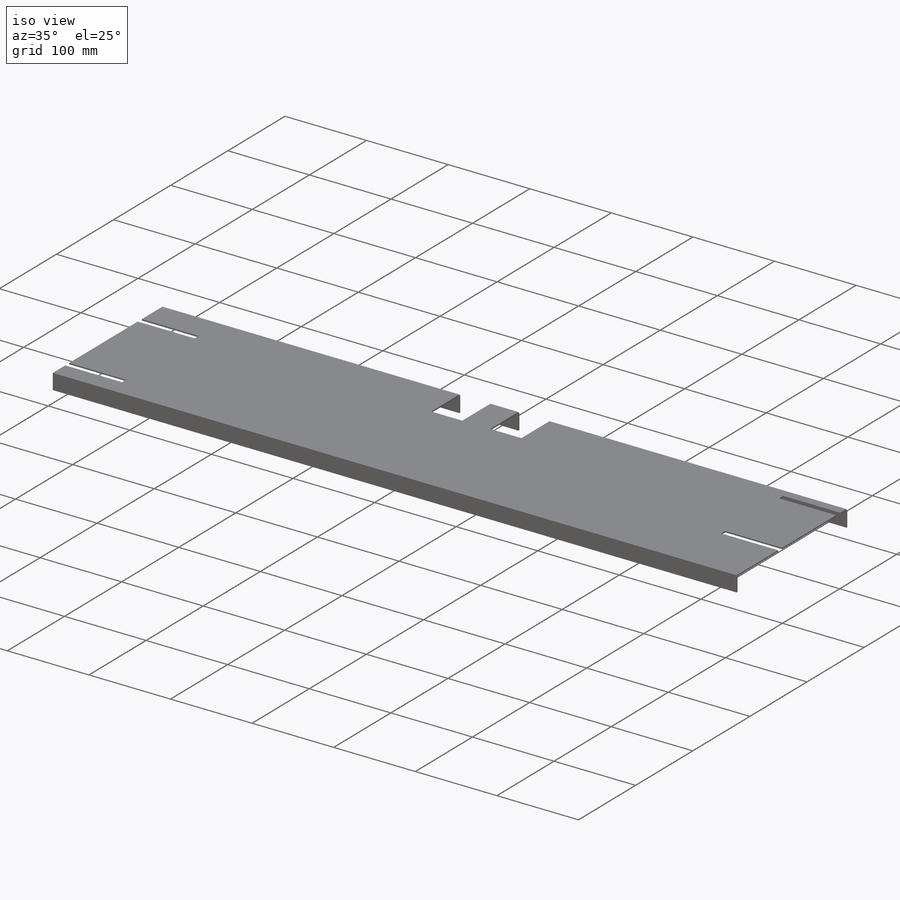
[diagram: iso view]
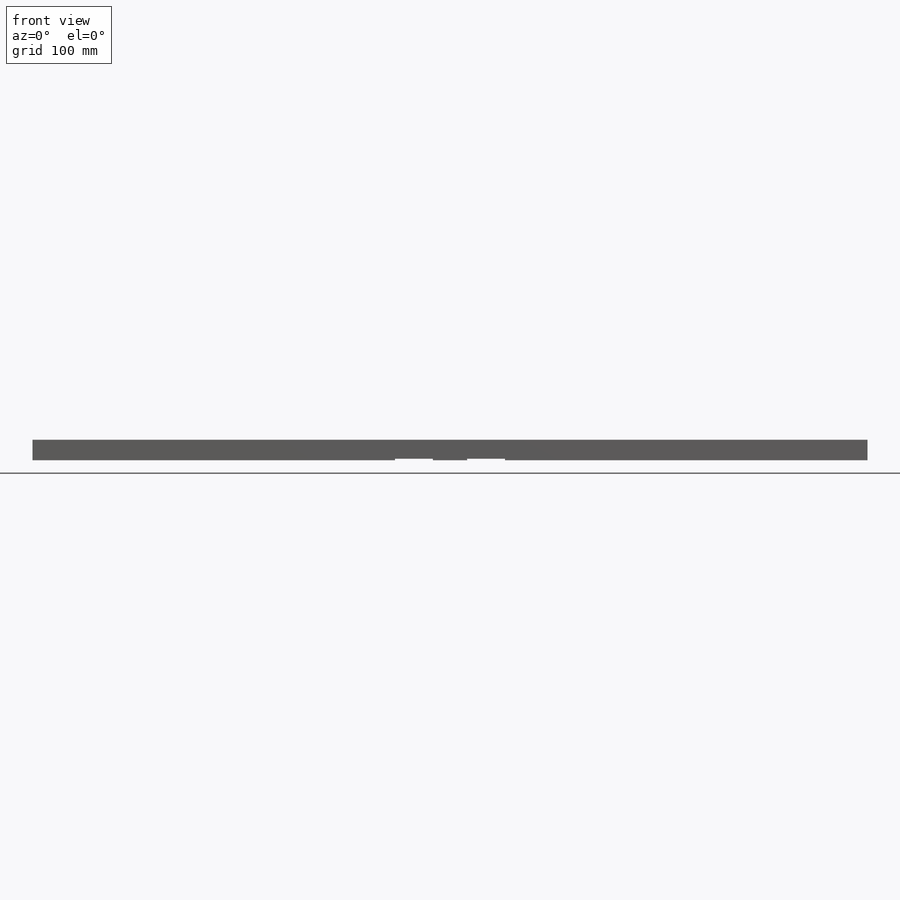
[diagram: front view]
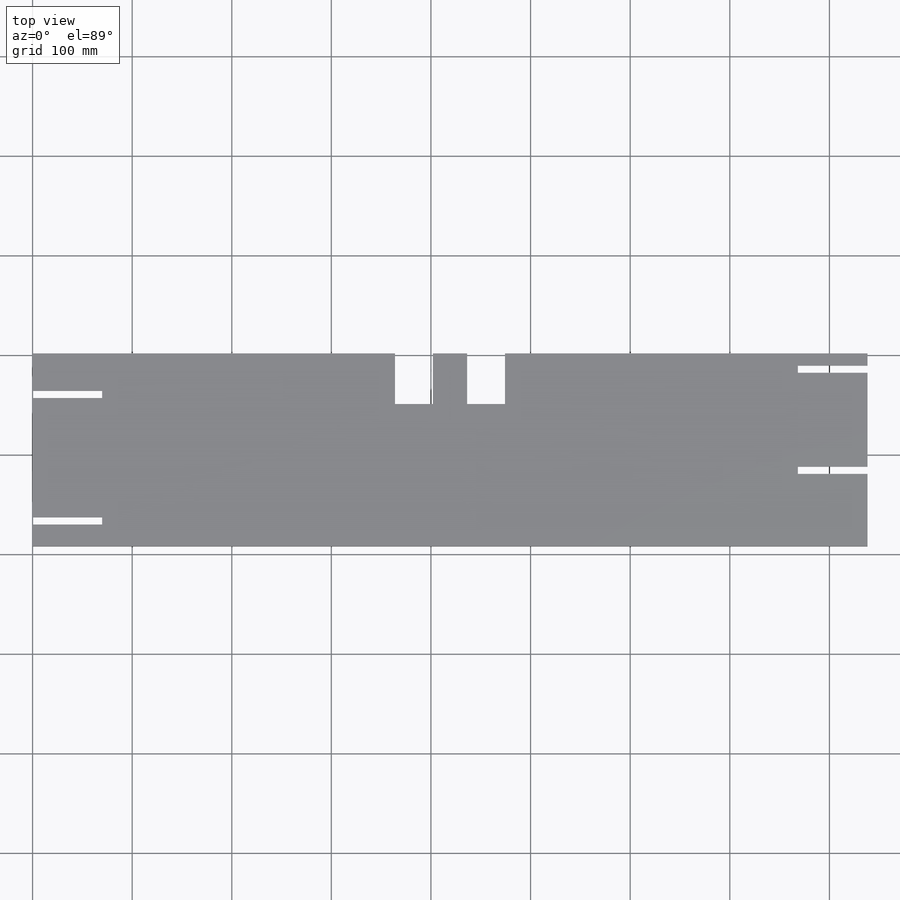
[diagram: top view]
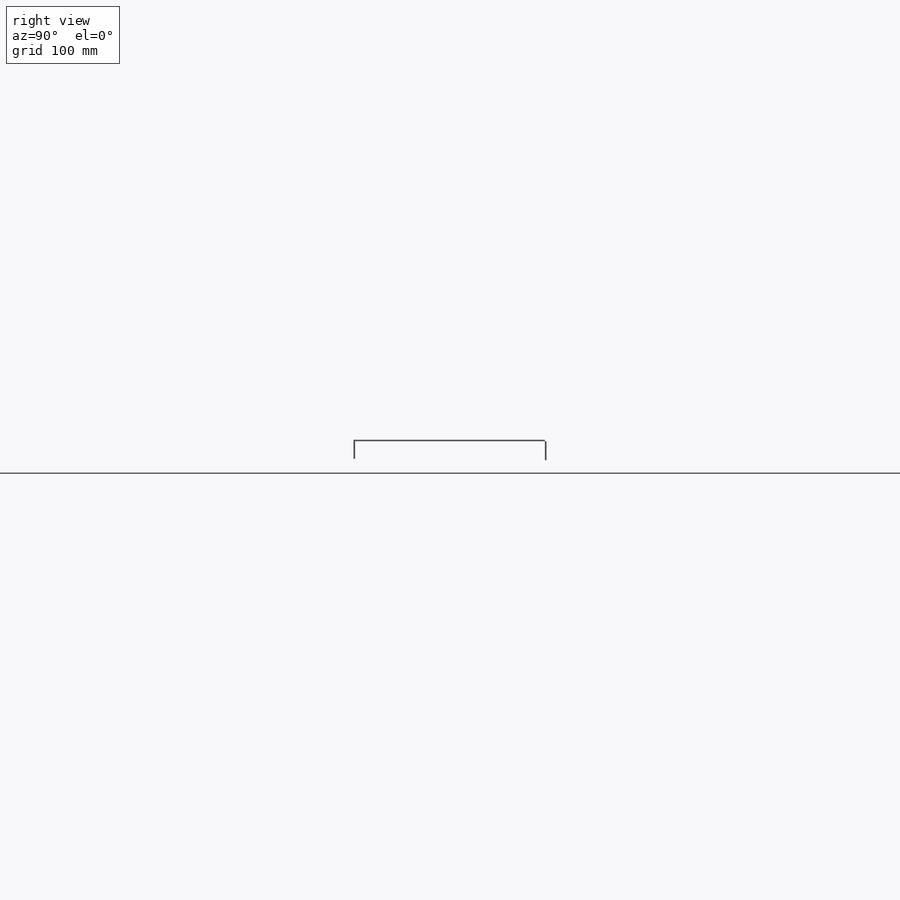
[diagram: right view]
SOLIDWORKS PART (.sldprt)
format: sldprt  version: not decoded by parser v0  size: 246,272 bytes
history: native  units: mm
features: sketch x5, extrude x3, cut_extrude x2, material x1 + 1 further entry (+10 scaffold rows collapsed)
feature tree (22):
  scaffold x10  (default folders/planes/origin — collapsed)
  material  "Material <not specified>"
  "Origin"  ID=392984584
  sketch  "Sketch1"  dims[D1=838.2mm D2=190.5mm]
  extrude  "Boss-Extrude1"  Depth=1.6002mm
  sketch  "Sketch3"  dims[D1=19.05mm]
  extrude  "Boss-Extrude2"  Depth=1.6002mm
  sketch  "Sketch4"  dims[D1=19.05mm]
  extrude  "Boss-Extrude3"  Depth=1.6002mm
  sketch  "Sketch2"  dims[c1.D1=50.8mm c1.D2=50.8mm c1.D3=34.29mm c1.D4=38.1mm c1.D5=38.1mm c2.D1=50.8mm c2.D2=50.8mm c2.D3=38.1mm c2.D4=38.1mm c2.D5=34.29mm]
  cut_extrude  "Cut-Extrude1"  [1 undecoded]
  sketch  "Sketch6"  dims[c1.D1=127.0mm c1.D2=101.6mm c1.D3=736.6mm c1.D4=736.6mm c1.D5=~758.177629mm c2.D3=736.6mm c2.D5=7.9375mm c2.D6=7.9375mm c2.D7=7.9375mm c2.D8=7.9375mm c2.D9=12.7mm c2.D10=12.7mm c2.D4=12.7mm c3.D10=12.7mm c3.D11=12.7mm c3.D12=736.6mm c3.D13=50.8mm c3.D14=50.8mm c3.D15=50.8mm c3.D16=76.2mm c3.D1=7.112mm c3.D2=7.112mm c3.D3=7.112mm c3.D4=7.112mm c3.D5=69.85mm c3.D6=69.85mm c3.D7=69.85mm c3.D8=69.85mm c3.D9=21.844mm c4.D10=119.888mm c4.D11=72.644mm c4.D12=94.488mm]
  cut_extrude  "Cut-Extrude2"  [1 undecoded]
decode coverage: 8 of 10 modeling features carry decoded parameters; 1 rows unclassified (native names shown)
note: ~ marks probable driven/reference dimensions
note: 2 parameter values undecoded
note: suppression state not decoded; provenance and decode notes live in map.json
